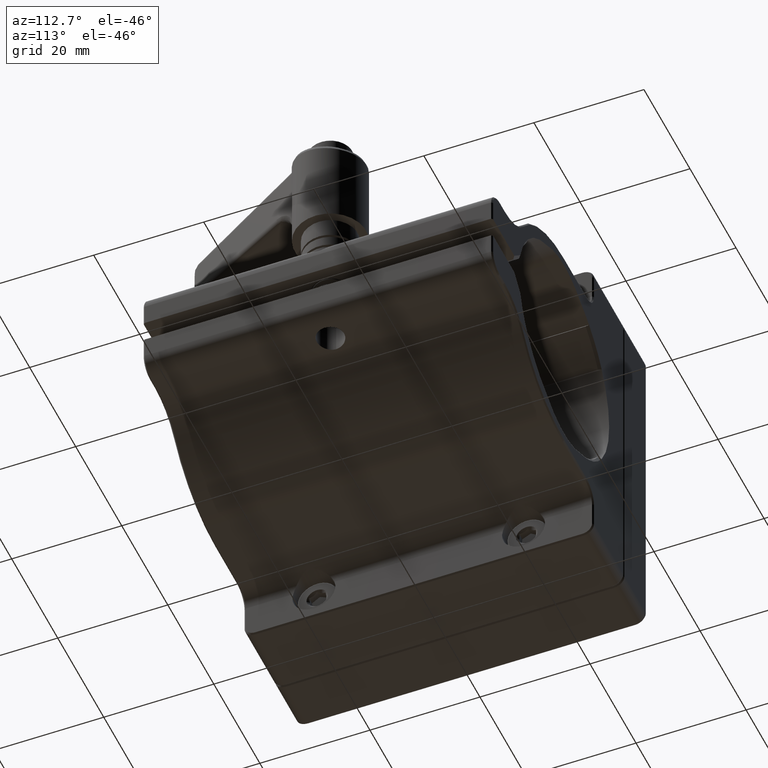
[diagram: clean part render]
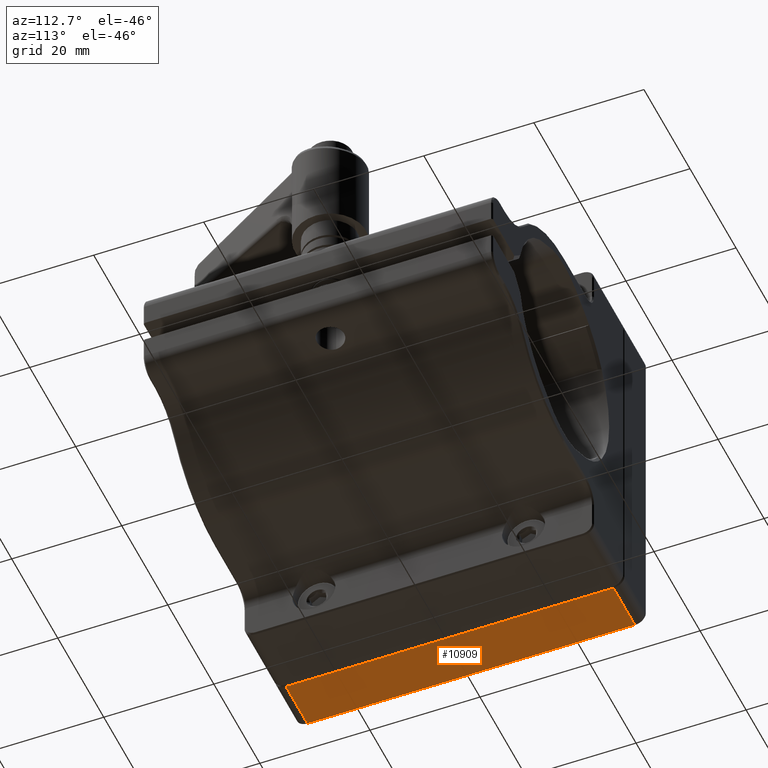
[diagram: same view with one face highlighted and labeled with its STEP entity id]
A machine part, auxiliary view. The second image highlights one B-rep face of the part: STEP entity #10909.
In plain terms, the highlighted planar face has unit normal (0, -0, 1).
Its self-contained STEP definition (entity closure, byte-faithful):
#91 = DIRECTION ( 'NONE',  ( -1.000000000000000000, 0.000000000000000000, 0.000000000000000000 ) ) ;
#1311 = LINE ( 'NONE', #11210, #4476 ) ;
#1630 = VECTOR ( 'NONE', #9344, 1000.000000000000000 ) ;
#1905 = DIRECTION ( 'NONE',  ( 0.000000000000000000, -1.000000000000000000, -2.185478394931410575E-16 ) ) ;
#1967 = ORIENTED_EDGE ( 'NONE', *, *, #10675, .T. ) ;
#2819 = DIRECTION ( 'NONE',  ( 0.000000000000000000, -1.000000000000000000, -2.185478394931410575E-16 ) ) ;
#3387 = ORIENTED_EDGE ( 'NONE', *, *, #5052, .T. ) ;
#3488 = LINE ( 'NONE', #5839, #12018 ) ;
#3996 = LINE ( 'NONE', #13908, #1630 ) ;
#4476 = VECTOR ( 'NONE', #91, 1000.000000000000000 ) ;
#4684 = EDGE_CURVE ( 'NONE', #15034, #5308, #13022, .T. ) ;
#5027 = PLANE ( 'NONE',  #15644 ) ;
#5052 = EDGE_CURVE ( 'NONE', #5308, #11877, #1311, .T. ) ;
#5308 = VERTEX_POINT ( 'NONE', #10061 ) ;
#5839 = CARTESIAN_POINT ( 'NONE',  ( -6.604000000000000981, 29.75000000000000355, -31.74799999999998334 ) ) ;
#6153 = ORIENTED_EDGE ( 'NONE', *, *, #4684, .T. ) ;
#6575 = EDGE_LOOP ( 'NONE', ( #1967, #6153, #3387, #13455 ) ) ;
#7839 = VECTOR ( 'NONE', #1905, 1000.000000000000000 ) ;
#8100 = VERTEX_POINT ( 'NONE', #8508 ) ;
#8508 = CARTESIAN_POINT ( 'NONE',  ( -16.15200000000000102, 29.75000000000000355, -31.74799999999998334 ) ) ;
#9344 = DIRECTION ( 'NONE',  ( 0.000000000000000000, 1.000000000000000000, 2.185478394931410575E-16 ) ) ;
#9649 = EDGE_CURVE ( 'NONE', #11877, #8100, #3996, .T. ) ;
#10061 = CARTESIAN_POINT ( 'NONE',  ( -6.854000000000001869, -29.74999999999999645, -31.74799999999999756 ) ) ;
#10675 = EDGE_CURVE ( 'NONE', #8100, #15034, #3488, .T. ) ;
#10909 = ADVANCED_FACE ( 'NONE', ( #13879 ), #5027, .F. ) ;
#11210 = CARTESIAN_POINT ( 'NONE',  ( -6.604000000000000981, -29.74999999999999645, -31.74799999999999756 ) ) ;
#11877 = VERTEX_POINT ( 'NONE', #14392 ) ;
#12018 = VECTOR ( 'NONE', #14763, 1000.000000000000000 ) ;
#12495 = DIRECTION ( 'NONE',  ( 0.000000000000000000, -2.185478394931410575E-16, 1.000000000000000000 ) ) ;
#13022 = LINE ( 'NONE', #13263, #7839 ) ;
#13263 = CARTESIAN_POINT ( 'NONE',  ( -6.854000000000001869, -29.74999999999999645, -31.74799999999999756 ) ) ;
#13455 = ORIENTED_EDGE ( 'NONE', *, *, #9649, .T. ) ;
#13879 = FACE_OUTER_BOUND ( 'NONE', #6575, .T. ) ;
#13908 = CARTESIAN_POINT ( 'NONE',  ( -16.15200000000000102, 31.75000000000000711, -31.74799999999998334 ) ) ;
#14021 = CARTESIAN_POINT ( 'NONE',  ( -6.854000000000001869, 29.75000000000000355, -31.74799999999998334 ) ) ;
#14392 = CARTESIAN_POINT ( 'NONE',  ( -16.15200000000000102, -29.74999999999999645, -31.74799999999999756 ) ) ;
#14763 = DIRECTION ( 'NONE',  ( 1.000000000000000000, -0.000000000000000000, -0.000000000000000000 ) ) ;
#15034 = VERTEX_POINT ( 'NONE', #14021 ) ;
#15089 = CARTESIAN_POINT ( 'NONE',  ( -6.604000000000000981, 31.75000000000000711, -31.74799999999998334 ) ) ;
#15644 = AXIS2_PLACEMENT_3D ( 'NONE', #15089, #12495, #2819 ) ;